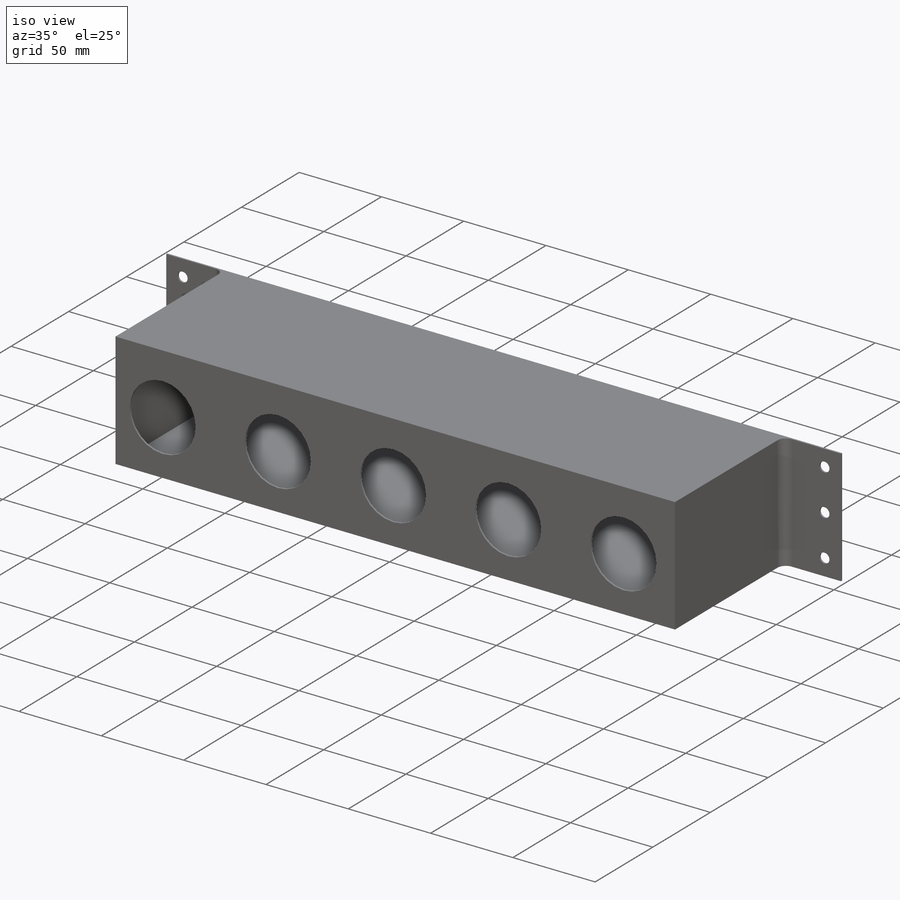
[diagram: iso view]
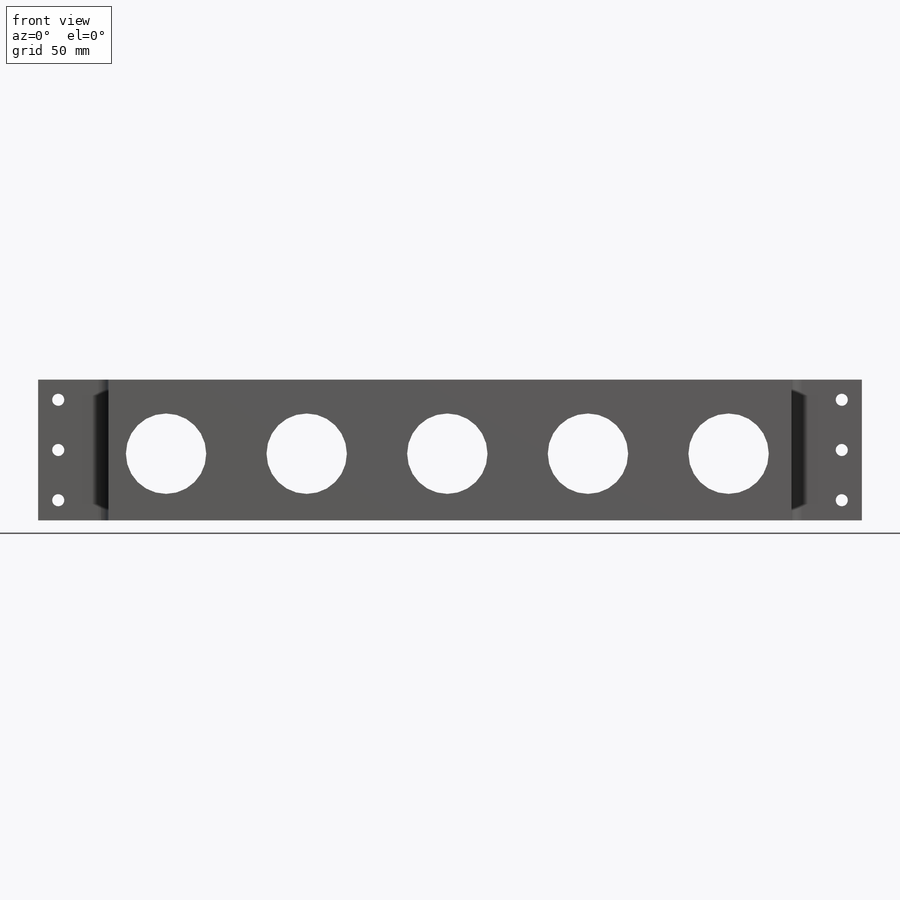
[diagram: front view]
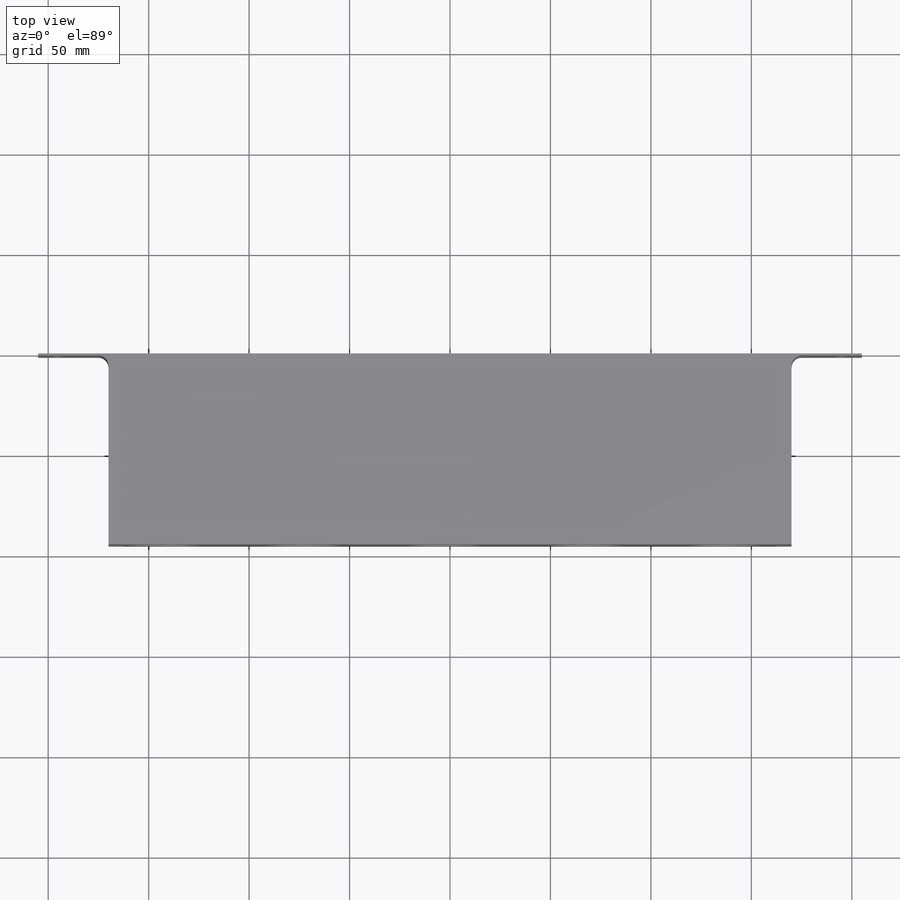
[diagram: top view]
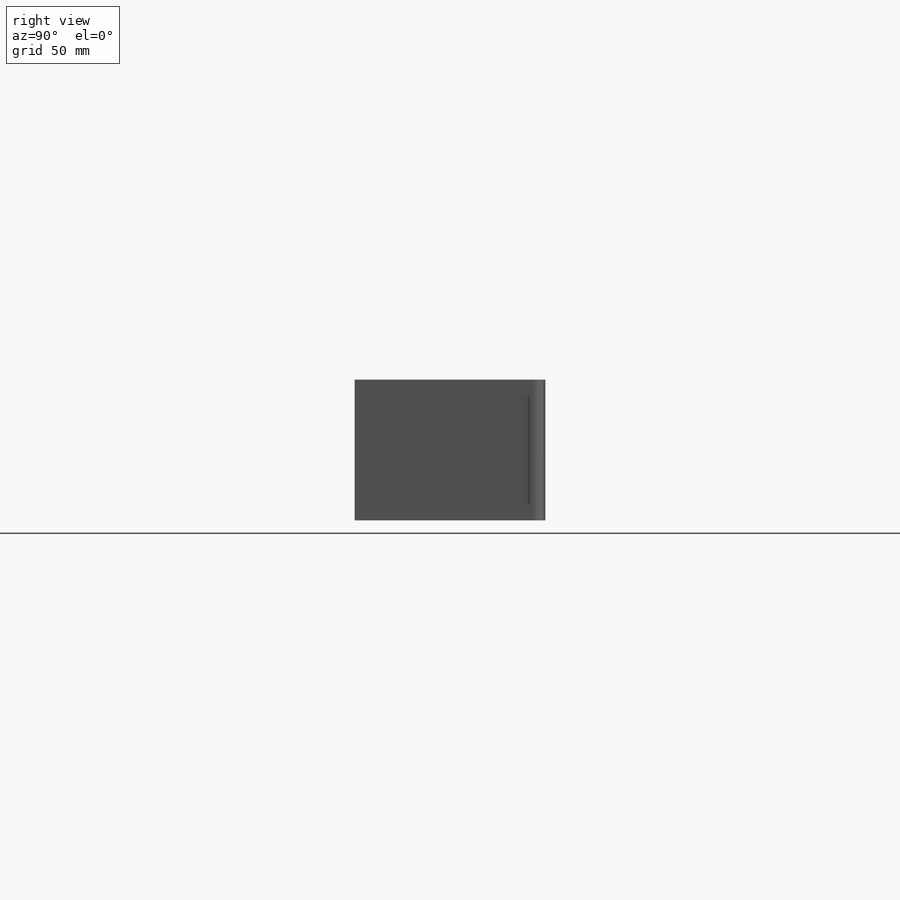
[diagram: right view]
SOLIDWORKS PART (.sldprt)
format: sldprt  version: not decoded by parser v0  size: 280,576 bytes
history: native  units: mm
features: sketch x5, cut_extrude x4, plane x3, material x1, extrude x1, shell x1, fillet x1 (+9 scaffold rows collapsed)
feature tree (25):
  scaffold x9  (default folders/planes/origin — collapsed)
  material  "锻制不锈钢"
  plane  "前视基准面"
  plane  "上视基准面"
  plane  "右视基准面"
  sketch  "草图1"  dims[c1.D1=~107.326587mm c1.D2=~409.223458mm c2.D1=410.0mm c2.D2=70.0mm]
  extrude  "凸台-拉伸1"  Depth=95mm
  sketch  "草图2"  dims[D2=5.0mm D1=1.0mm D3=35.0mm]
  cut_extrude  "切除-拉伸1"  Depth=95mm
  shell  "抽壳1"  Thickness=1mm
  fillet  "圆角2"  Radius=5mm
  sketch  "草图3"  dims[c1.D1=6.0mm c1.D4=6.0mm c2.D1=~3.43558mm c2.D2=10.0mm c2.D3=~16.048852mm c3.D3=90.0deg c4.D3=10.0mm c4.D4=~1.069772mm]
  cut_extrude  "切除-拉伸2"  [1 undecoded]
  sketch  "草图4"  dims[D1=~88.776461mm D2=28.67mm D4=33.16mm D5=28.67mm D3=5.0]
  cut_extrude  "切除-拉伸3"  [1 undecoded]
  sketch  "草图6"
  cut_extrude  "切除-拉伸6"  [1 undecoded]
decode coverage: 8 of 12 modeling features carry decoded parameters
note: ~ marks probable driven/reference dimensions
note: 3 parameter values undecoded
summary: no parameter record found for 3 features
note: suppression state not decoded; provenance and decode notes live in map.json
